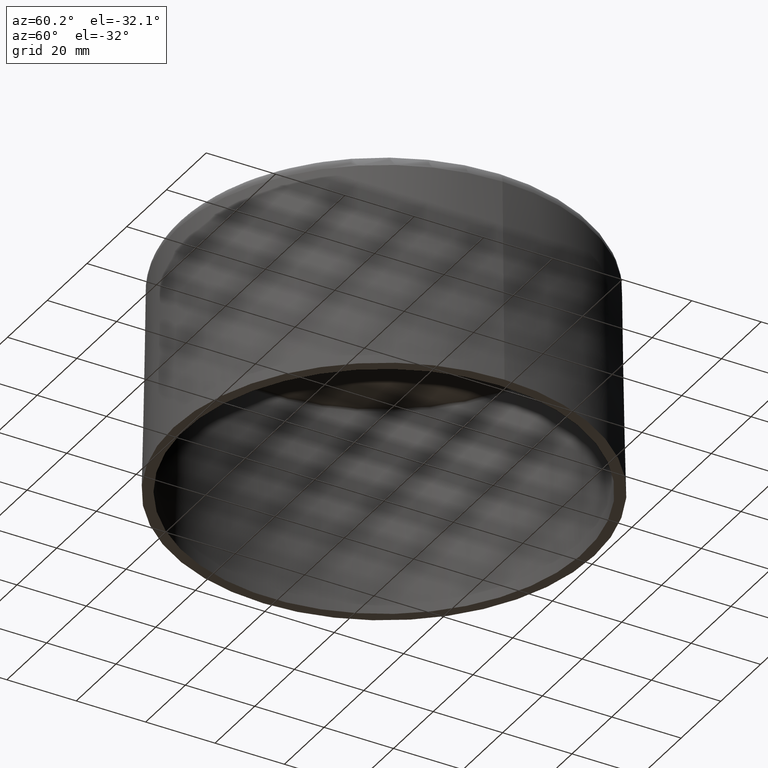
[diagram: clean part render]
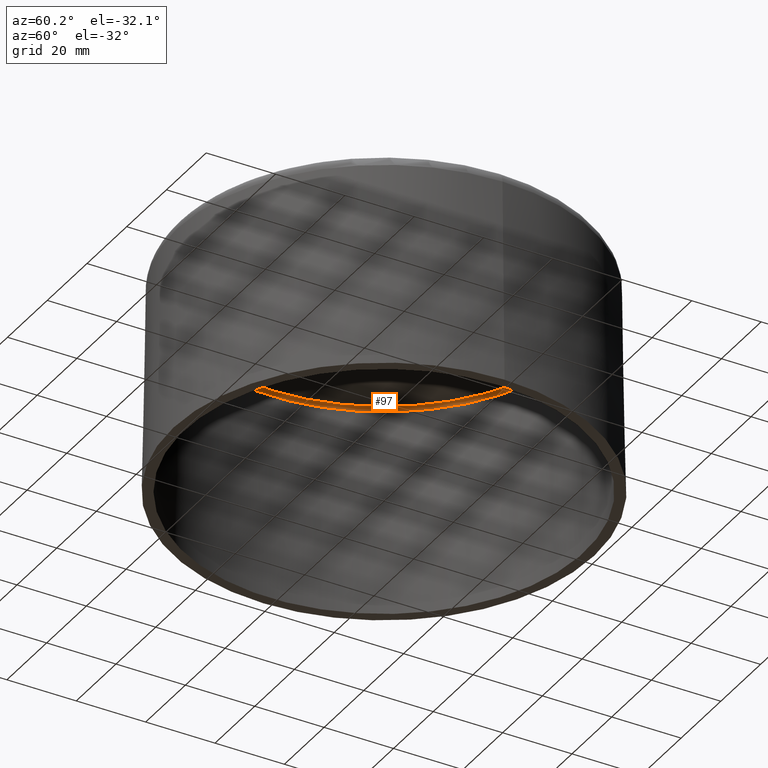
[diagram: same view with one face highlighted and labeled with its STEP entity id]
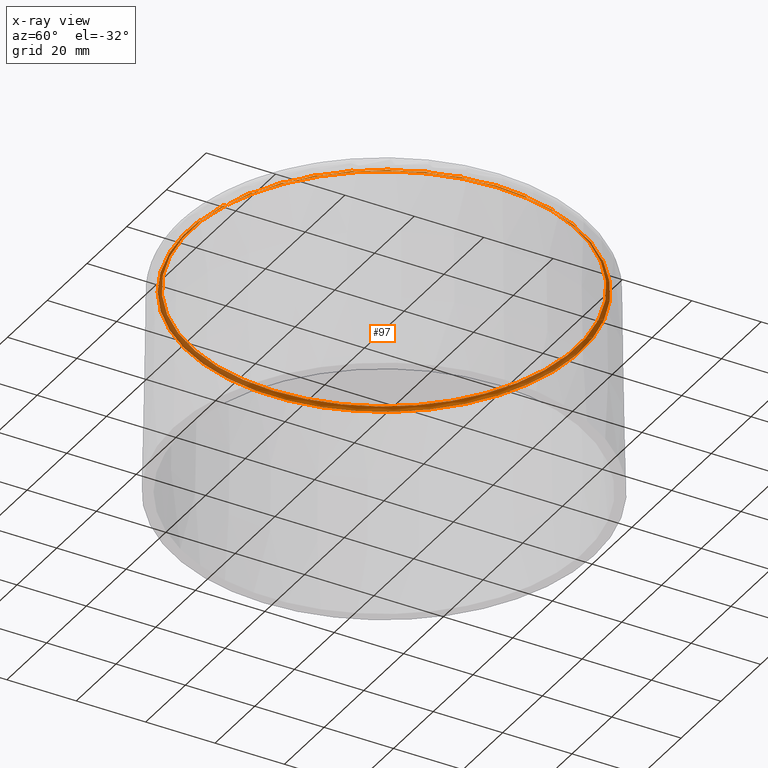
[diagram: x-ray of the same camera — body ghosted, the highlighted face saturated]
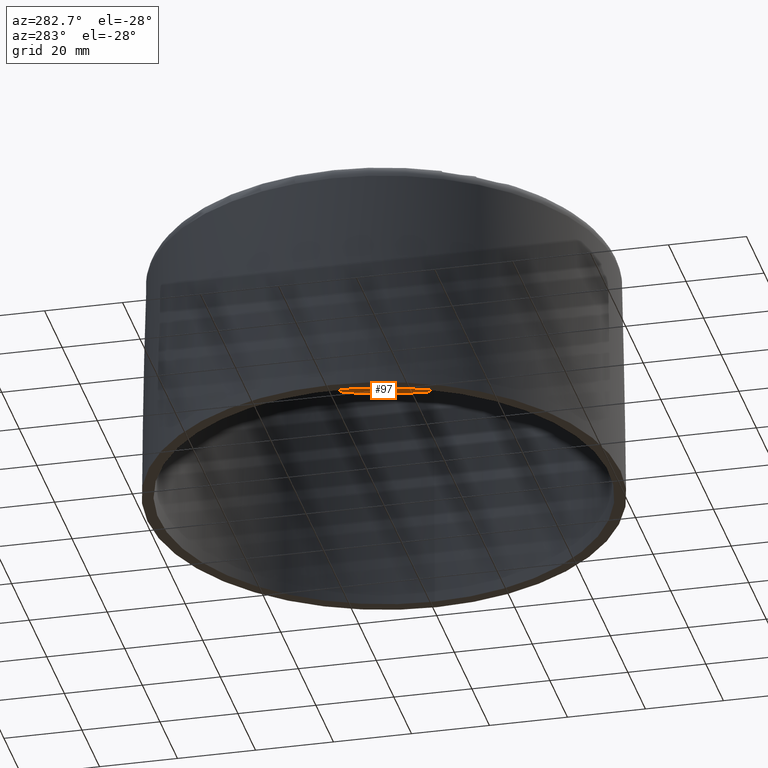
[diagram: same view with one face highlighted and labeled with its STEP entity id]
A machine part, auxiliary view. The second image highlights one B-rep face of the part: STEP entity #97.
The next image is the same camera in x-ray: the body ghosted, the highlighted face saturated — about 44% of this face is hidden behind the body in this view.
A second angle (auxiliary view) of the same face is appended — the face is thin or edge-on in the first view.
In plain terms, the highlighted toroidal blend (fillet) surface has major radius 55.6437 mm and minor (blend) radius 1 mm.
Its self-contained STEP definition (entity closure, byte-faithful):
#97 = ADVANCED_FACE( '', ( #218, #219 ), #220, .F. );
#218 = FACE_OUTER_BOUND( '', #405, .T. );
#219 = FACE_OUTER_BOUND( '', #406, .T. );
#220 = TOROIDAL_SURFACE( '', #407, 55.6436507890378, 1.00000000000000 );
#405 = EDGE_LOOP( '', ( #762 ) );
#406 = EDGE_LOOP( '', ( #763 ) );
#407 = AXIS2_PLACEMENT_3D( '', #764, #765, #766 );
#762 = ORIENTED_EDGE( '', *, *, #1344, .F. );
#763 = ORIENTED_EDGE( '', *, *, #1348, .T. );
#764 = CARTESIAN_POINT( '', ( -3.61258874377601E-015, 0.000000000000000, 59.0000000000000 ) );
#765 = DIRECTION( '', ( -6.12303176911189E-017, 0.000000000000000, 1.00000000000000 ) );
#766 = DIRECTION( '', ( 1.00000000000000, 0.000000000000000, 6.12303176911189E-017 ) );
#1344 = EDGE_CURVE( '', #1636, #1636, #1637, .T. );
#1348 = EDGE_CURVE( '', #1643, #1643, #1644, .T. );
#1636 = VERTEX_POINT( '', #2224 );
#1637 = CIRCLE( '', #2225, 56.6434984841942 );
#1643 = VERTEX_POINT( '', #2234 );
#1644 = CIRCLE( '', #2235, 55.6436507890378 );
#2224 = CARTESIAN_POINT( '', ( 56.6434984841942, 0.000000000000000, 59.0174524064373 ) );
#2225 = AXIS2_PLACEMENT_3D( '', #2532, #2533, #2534 );
#2234 = CARTESIAN_POINT( '', ( 55.6436507890378, 0.000000000000000, 60.0000000000000 ) );
#2235 = AXIS2_PLACEMENT_3D( '', #2538, #2539, #2540 );
#2532 = CARTESIAN_POINT( '', ( -3.61365736016664E-015, 0.000000000000000, 59.0174524064373 ) );
#2533 = DIRECTION( '', ( -6.12303176911189E-017, 0.000000000000000, 1.00000000000000 ) );
#2534 = DIRECTION( '', ( 1.00000000000000, 0.000000000000000, 6.12303176911189E-017 ) );
#2538 = CARTESIAN_POINT( '', ( -3.67381906146713E-015, 0.000000000000000, 60.0000000000000 ) );
#2539 = DIRECTION( '', ( -6.12303176911189E-017, 0.000000000000000, 1.00000000000000 ) );
#2540 = DIRECTION( '', ( 1.00000000000000, 0.000000000000000, 6.12303176911189E-017 ) );